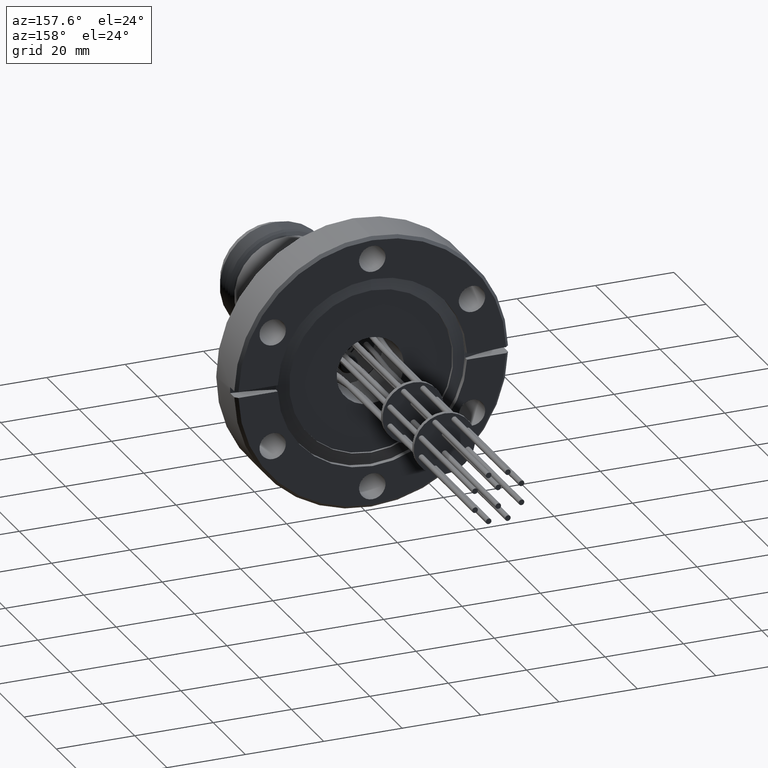
[diagram: clean part render]
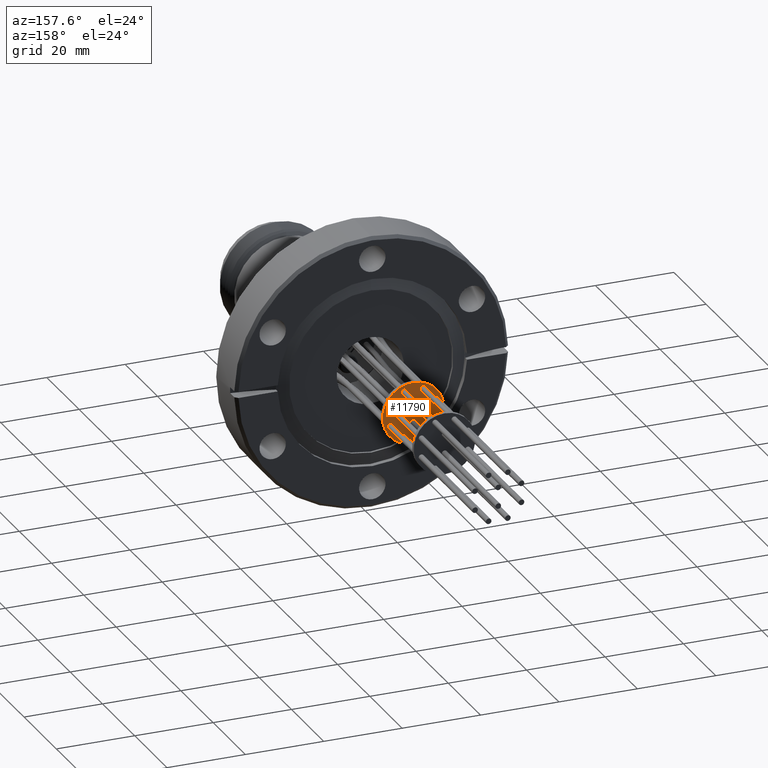
[diagram: same view with one face highlighted and labeled with its STEP entity id]
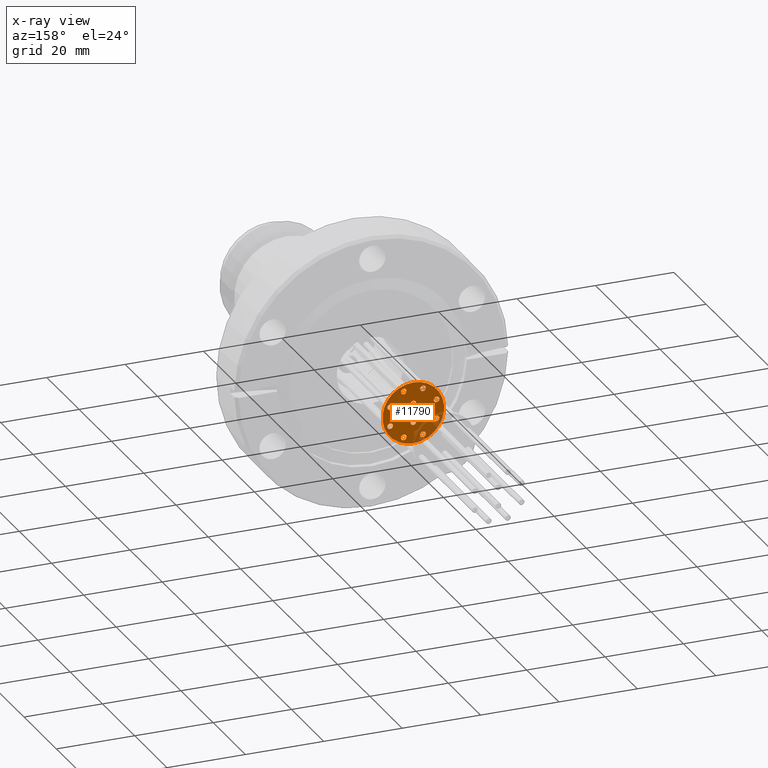
[diagram: x-ray of the same camera — body ghosted, the highlighted face saturated]
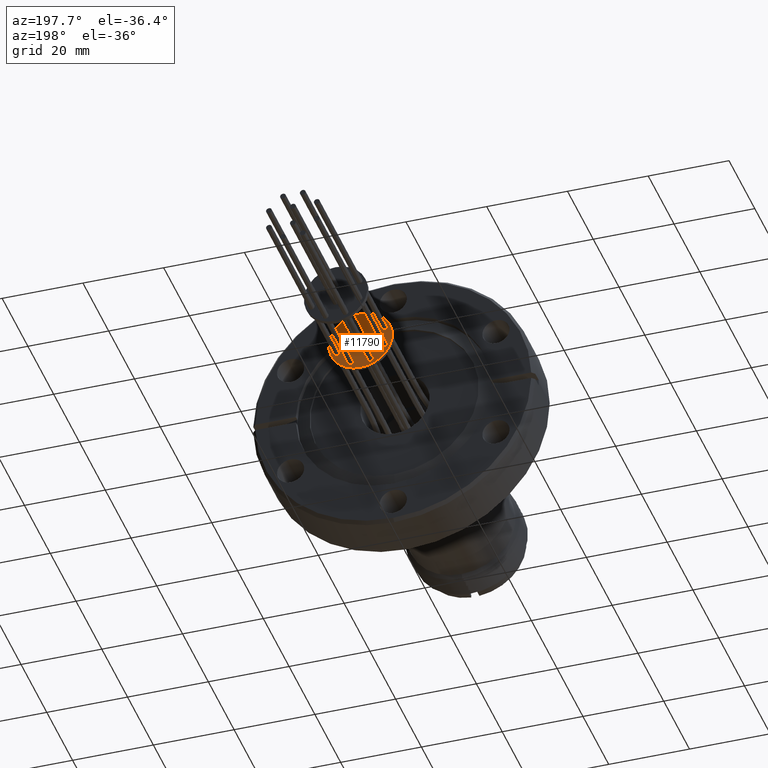
[diagram: same view with one face highlighted and labeled with its STEP entity id]
A machine part, auxiliary view. The second image highlights one B-rep face of the part: STEP entity #11790.
The next image is the same camera in x-ray: the body ghosted, the highlighted face saturated — about 15% of this face is hidden behind the body in this view.
A second angle (auxiliary view) of the same face is appended — the face is thin or edge-on in the first view.
In plain terms, the highlighted planar face has unit normal (0, -1, 0).
Its self-contained STEP definition (entity closure, byte-faithful):
#1167 = CIRCLE ( 'NONE', #2283, 0.02799999999999998000 ) ;
#1504 = VERTEX_POINT ( 'NONE', #12950 ) ;
#1507 = VERTEX_POINT ( 'NONE', #12947 ) ;
#1528 = VERTEX_POINT ( 'NONE', #12925 ) ;
#1554 = VERTEX_POINT ( 'NONE', #12888 ) ;
#1655 = VERTEX_POINT ( 'NONE', #12778 ) ;
#1659 = VERTEX_POINT ( 'NONE', #12774 ) ;
#1675 = VERTEX_POINT ( 'NONE', #12751 ) ;
#1687 = VERTEX_POINT ( 'NONE', #12729 ) ;
#1701 = VERTEX_POINT ( 'NONE', #12713 ) ;
#1726 = VERTEX_POINT ( 'NONE', #12677 ) ;
#1738 = VERTEX_POINT ( 'NONE', #12662 ) ;
#1741 = VERTEX_POINT ( 'NONE', #12658 ) ;
#1756 = VERTEX_POINT ( 'NONE', #12635 ) ;
#1767 = VERTEX_POINT ( 'NONE', #2898 ) ;
#1785 = VERTEX_POINT ( 'NONE', #2861 ) ;
#2283 = AXIS2_PLACEMENT_3D ( 'NONE', #11885, #11884, #11883 ) ;
#2861 = CARTESIAN_POINT ( 'NONE',  ( -0.09499800511692571600, 2.750327907706640000, 0.0001156490920415340400 ) ) ;
#2898 = CARTESIAN_POINT ( 'NONE',  ( 1.460921756939938000E-016, 2.750327907706640000, -0.3099999999999998900 ) ) ;
#3153 = CARTESIAN_POINT ( 'NONE',  ( -0.09662756667218540300, 2.750327907706640000, 0.2612795819591000000 ) ) ;
#3188 = CARTESIAN_POINT ( 'NONE',  ( -0.2052795819591003400, 2.750327907706640000, 0.09662756667218468100 ) ) ;
#3203 = CARTESIAN_POINT ( 'NONE',  ( 0.2612795819591009500, 2.750327907706640000, -0.09662756667218304300 ) ) ;
#3207 = CARTESIAN_POINT ( 'NONE',  ( -1.817840186596829000E-016, 2.750327907706640000, -0.06700000000000030900 ) ) ;
#3238 = CARTESIAN_POINT ( 'NONE',  ( 1.081281249204258500E-016, 2.750327907706640000, 6.995462875240607500E-017 ) ) ;
#3240 = PLANE ( 'NONE',  #11215 ) ;
#3241 = DIRECTION ( 'NONE',  ( 1.848892746611746400E-032, -1.000000000000000000, 1.224646799147353900E-016 ) ) ;
#3242 = DIRECTION ( 'NONE',  ( 0.0000000000000000000, -1.224646799147353900E-016, -1.000000000000000000 ) ) ;
#3783 = CARTESIAN_POINT ( 'NONE',  ( 8.451654730398803400E-016, 2.750327907706640000, 0.09500000000000030600 ) ) ;
#3784 = DIRECTION ( 'NONE',  ( -4.300612986056274500E-031, 1.000000000000000000, -3.213641021232671000E-017 ) ) ;
#3785 = DIRECTION ( 'NONE',  ( 0.0000000000000000000, 0.0000000000000000000, 1.000000000000000000 ) ) ;
#3786 = CARTESIAN_POINT ( 'NONE',  ( -1.817840186596829000E-016, 2.750327907706640000, -0.09500000000000030600 ) ) ;
#3787 = DIRECTION ( 'NONE',  ( 2.056539454981342400E-031, 1.000000000000000000, 3.213641021232671000E-017 ) ) ;
#3788 = DIRECTION ( 'NONE',  ( 0.0000000000000000000, 0.0000000000000000000, 1.000000000000000000 ) ) ;
#3789 = CARTESIAN_POINT ( 'NONE',  ( -0.09662756667218386200, 2.750327907706640000, -0.2332795819591006500 ) ) ;
#3790 = DIRECTION ( 'NONE',  ( 3.014197995417973200E-017, 1.000000000000000000, 7.276917680215769100E-017 ) ) ;
#3791 = DIRECTION ( 'NONE',  ( 0.0000000000000000000, 0.0000000000000000000, 1.000000000000000000 ) ) ;
#3792 = CARTESIAN_POINT ( 'NONE',  ( -0.2332795819590996700, 2.750327907706640000, -0.09662756667218620800 ) ) ;
#3793 = DIRECTION ( 'NONE',  ( 7.276917680215802400E-017, 1.000000000000000000, 3.014197995417890600E-017 ) ) ;
#3794 = DIRECTION ( 'NONE',  ( -1.000000000000000000, 0.0000000000000000000, 0.0000000000000000000 ) ) ;
#3795 = CARTESIAN_POINT ( 'NONE',  ( -0.2332795819591003100, 2.750327907706640000, 0.09662756667218468100 ) ) ;
#3796 = DIRECTION ( 'NONE',  ( 7.276917680215758000E-017, 1.000000000000000000, -3.014197995417998400E-017 ) ) ;
#3797 = DIRECTION ( 'NONE',  ( -1.000000000000000000, 0.0000000000000000000, 0.0000000000000000000 ) ) ;
#3798 = CARTESIAN_POINT ( 'NONE',  ( -0.09662756667218540300, 2.750327907706640000, 0.2332795819591000100 ) ) ;
#3799 = DIRECTION ( 'NONE',  ( 3.014197995417865300E-017, 1.000000000000000000, -7.276917680215813500E-017 ) ) ;
#3800 = DIRECTION ( 'NONE',  ( 0.0000000000000000000, 0.0000000000000000000, 1.000000000000000000 ) ) ;
#3801 = CARTESIAN_POINT ( 'NONE',  ( 0.09662756667218550000, 2.750327907706640000, 0.2332795819590999800 ) ) ;
#3802 = DIRECTION ( 'NONE',  ( -3.014197995418023700E-017, 1.000000000000000000, -7.276917680215748100E-017 ) ) ;
#3803 = DIRECTION ( 'NONE',  ( 0.0000000000000000000, 0.0000000000000000000, 1.000000000000000000 ) ) ;
#3804 = CARTESIAN_POINT ( 'NONE',  ( 0.2332795819590989800, 2.750327907706640000, 0.09662756667218780300 ) ) ;
#3805 = DIRECTION ( 'NONE',  ( -7.276917680215780200E-017, 1.000000000000000000, -3.014197995417940500E-017 ) ) ;
#3806 = DIRECTION ( 'NONE',  ( -1.000000000000000000, 0.0000000000000000000, 0.0000000000000000000 ) ) ;
#3807 = CARTESIAN_POINT ( 'NONE',  ( 0.2332795819591010100, 2.750327907706640000, -0.09662756667218305700 ) ) ;
#3808 = DIRECTION ( 'NONE',  ( -7.276917680215778900E-017, 1.000000000000000000, 3.014197995417947900E-017 ) ) ;
#3809 = DIRECTION ( 'NONE',  ( -1.000000000000000000, 0.0000000000000000000, 0.0000000000000000000 ) ) ;
#3810 = CARTESIAN_POINT ( 'NONE',  ( 0.09662756667218699900, 2.750327907706640000, -0.2332795819590993100 ) ) ;
#3811 = DIRECTION ( 'NONE',  ( -3.014197995417915800E-017, 1.000000000000000000, 7.276917680215791300E-017 ) ) ;
#3812 = DIRECTION ( 'NONE',  ( 0.0000000000000000000, 0.0000000000000000000, 1.000000000000000000 ) ) ;
#3813 = CARTESIAN_POINT ( 'NONE',  ( 1.081281249204258500E-016, 2.750327907706640000, 6.995462875240606300E-017 ) ) ;
#3814 = DIRECTION ( 'NONE',  ( 9.860761315262647600E-032, -1.000000000000000000, 1.224646799147353500E-016 ) ) ;
#3815 = DIRECTION ( 'NONE',  ( 0.0000000000000000000, 0.0000000000000000000, 1.000000000000000000 ) ) ;
#3816 = CARTESIAN_POINT ( 'NONE',  ( -0.09499800511692571600, 2.750327907706640000, 0.0006156490920415386800 ) ) ;
#3817 = DIRECTION ( 'NONE',  ( 9.860761315262647600E-032, -1.000000000000000000, 1.224646799147353500E-016 ) ) ;
#3818 = DIRECTION ( 'NONE',  ( 0.0000000000000000000, 0.0000000000000000000, -1.000000000000000000 ) ) ;
#3819 = CARTESIAN_POINT ( 'NONE',  ( 0.09499800511692595200, 2.750327907706640000, -0.0006156490920420818700 ) ) ;
#3820 = DIRECTION ( 'NONE',  ( 9.860761315262647600E-032, -1.000000000000000000, 1.224646799147353500E-016 ) ) ;
#3821 = DIRECTION ( 'NONE',  ( 0.0000000000000000000, 0.0000000000000000000, -1.000000000000000000 ) ) ;
#4310 = CARTESIAN_POINT ( 'NONE',  ( -1.783550076220702500E-016, 2.750327907706640000, -0.1230000000000003000 ) ) ;
#4357 = CARTESIAN_POINT ( 'NONE',  ( -0.09662756667218386200, 2.750327907706640000, -0.2612795819591006200 ) ) ;
#4376 = CARTESIAN_POINT ( 'NONE',  ( -0.09662756667218540300, 2.750327907706640000, 0.2052795819591000400 ) ) ;
#4377 = CARTESIAN_POINT ( 'NONE',  ( -0.2612795819591002800, 2.750327907706640000, 0.09662756667218468100 ) ) ;
#4388 = CARTESIAN_POINT ( 'NONE',  ( -0.09499800511692571600, 2.750327907706640000, 0.001115649092041543500 ) ) ;
#4415 = CARTESIAN_POINT ( 'NONE',  ( -0.2612795819590996700, 2.750327907706640000, -0.09662756667218620800 ) ) ;
#4446 = CARTESIAN_POINT ( 'NONE',  ( 0.09662756667218550000, 2.750327907706640000, 0.2612795819590999500 ) ) ;
#4991 = EDGE_CURVE ( 'NONE', #9659, #1738, #1167, .T. ) ;
#5183 = FACE_BOUND ( 'NONE', #6156, .T. ) ;
#5189 = FACE_BOUND ( 'NONE', #6207, .T. ) ;
#5197 = FACE_BOUND ( 'NONE', #11717, .T. ) ;
#5201 = FACE_BOUND ( 'NONE', #11718, .T. ) ;
#5203 = FACE_BOUND ( 'NONE', #6219, .T. ) ;
#5204 = FACE_BOUND ( 'NONE', #6194, .T. ) ;
#5205 = FACE_OUTER_BOUND ( 'NONE', #6153, .T. ) ;
#5206 = FACE_BOUND ( 'NONE', #6151, .T. ) ;
#5207 = FACE_BOUND ( 'NONE', #6179, .T. ) ;
#5208 = FACE_BOUND ( 'NONE', #6177, .T. ) ;
#5209 = FACE_BOUND ( 'NONE', #11719, .T. ) ;
#5210 = FACE_BOUND ( 'NONE', #11720, .T. ) ;
#5211 = FACE_BOUND ( 'NONE', #11721, .T. ) ;
#5326 = CIRCLE ( 'NONE', #11285, 0.02799999999999999700 ) ;
#5327 = CIRCLE ( 'NONE', #11286, 0.02799999999999999700 ) ;
#5328 = CIRCLE ( 'NONE', #11287, 0.02799999999999998000 ) ;
#5329 = CIRCLE ( 'NONE', #11288, 0.02799999999999998000 ) ;
#5330 = CIRCLE ( 'NONE', #11289, 0.02799999999999998000 ) ;
#5331 = CIRCLE ( 'NONE', #11290, 0.02799999999999998000 ) ;
#5332 = CIRCLE ( 'NONE', #11291, 0.02799999999999998000 ) ;
#5333 = CIRCLE ( 'NONE', #11292, 0.02799999999999998000 ) ;
#5334 = CIRCLE ( 'NONE', #11293, 0.02799999999999994900 ) ;
#5335 = CIRCLE ( 'NONE', #11294, 0.02799999999999998000 ) ;
#5336 = CIRCLE ( 'NONE', #11295, 0.3100000000000000000 ) ;
#5337 = CIRCLE ( 'NONE', #11296, 0.0005000000000000046700 ) ;
#5338 = CIRCLE ( 'NONE', #11297, 0.0005000000000000046700 ) ;
#6151 = EDGE_LOOP ( 'NONE', ( #12288, #12289 ) ) ;
#6153 = EDGE_LOOP ( 'NONE', ( #12274, #12275 ) ) ;
#6156 = EDGE_LOOP ( 'NONE', ( #12282, #12283 ) ) ;
#6177 = EDGE_LOOP ( 'NONE', ( #12284, #12285 ) ) ;
#6179 = EDGE_LOOP ( 'NONE', ( #12286, #12287 ) ) ;
#6194 = EDGE_LOOP ( 'NONE', ( #12278, #12279 ) ) ;
#6207 = EDGE_LOOP ( 'NONE', ( #12276, #12277 ) ) ;
#6219 = EDGE_LOOP ( 'NONE', ( #12280, #12281 ) ) ;
#8462 = CARTESIAN_POINT ( 'NONE',  ( -0.09662756667218386200, 2.750327907706640000, -0.2332795819591006500 ) ) ;
#8463 = DIRECTION ( 'NONE',  ( 3.014197995417973200E-017, 1.000000000000000000, 7.276917680215769100E-017 ) ) ;
#8464 = DIRECTION ( 'NONE',  ( 0.0000000000000000000, 0.0000000000000000000, 1.000000000000000000 ) ) ;
#8472 = CARTESIAN_POINT ( 'NONE',  ( -1.817840186596829000E-016, 2.750327907706640000, -0.09500000000000030600 ) ) ;
#8473 = DIRECTION ( 'NONE',  ( 2.056539454981342400E-031, 1.000000000000000000, 3.213641021232671000E-017 ) ) ;
#8474 = DIRECTION ( 'NONE',  ( 0.0000000000000000000, 0.0000000000000000000, 1.000000000000000000 ) ) ;
#8482 = CARTESIAN_POINT ( 'NONE',  ( 8.451654730398803400E-016, 2.750327907706640000, 0.09500000000000030600 ) ) ;
#8483 = DIRECTION ( 'NONE',  ( -4.300612986056274500E-031, 1.000000000000000000, -3.213641021232671000E-017 ) ) ;
#8484 = DIRECTION ( 'NONE',  ( 0.0000000000000000000, 0.0000000000000000000, 1.000000000000000000 ) ) ;
#9069 = CARTESIAN_POINT ( 'NONE',  ( 1.081281249204258500E-016, 2.750327907706640000, 6.995462875240606300E-017 ) ) ;
#9070 = DIRECTION ( 'NONE',  ( 9.860761315262647600E-032, -1.000000000000000000, 1.224646799147353500E-016 ) ) ;
#9072 = DIRECTION ( 'NONE',  ( 0.0000000000000000000, 0.0000000000000000000, 1.000000000000000000 ) ) ;
#9089 = CARTESIAN_POINT ( 'NONE',  ( -0.09499800511692571600, 2.750327907706640000, 0.0006156490920415386800 ) ) ;
#9090 = DIRECTION ( 'NONE',  ( 9.860761315262647600E-032, -1.000000000000000000, 1.224646799147353500E-016 ) ) ;
#9091 = DIRECTION ( 'NONE',  ( 0.0000000000000000000, 0.0000000000000000000, -1.000000000000000000 ) ) ;
#9124 = CARTESIAN_POINT ( 'NONE',  ( 0.09499800511692595200, 2.750327907706640000, -0.0006156490920420818700 ) ) ;
#9126 = DIRECTION ( 'NONE',  ( 9.860761315262647600E-032, -1.000000000000000000, 1.224646799147353500E-016 ) ) ;
#9128 = DIRECTION ( 'NONE',  ( 0.0000000000000000000, 0.0000000000000000000, -1.000000000000000000 ) ) ;
#9160 = CARTESIAN_POINT ( 'NONE',  ( 0.09662756667218699900, 2.750327907706640000, -0.2332795819590993100 ) ) ;
#9161 = DIRECTION ( 'NONE',  ( -3.014197995417915800E-017, 1.000000000000000000, 7.276917680215791300E-017 ) ) ;
#9163 = DIRECTION ( 'NONE',  ( 0.0000000000000000000, 0.0000000000000000000, 1.000000000000000000 ) ) ;
#9201 = CARTESIAN_POINT ( 'NONE',  ( 0.2332795819591010100, 2.750327907706640000, -0.09662756667218305700 ) ) ;
#9202 = DIRECTION ( 'NONE',  ( -7.276917680215778900E-017, 1.000000000000000000, 3.014197995417947900E-017 ) ) ;
#9204 = DIRECTION ( 'NONE',  ( -1.000000000000000000, 0.0000000000000000000, 0.0000000000000000000 ) ) ;
#9240 = CARTESIAN_POINT ( 'NONE',  ( 0.2332795819590989800, 2.750327907706640000, 0.09662756667218780300 ) ) ;
#9241 = DIRECTION ( 'NONE',  ( -7.276917680215780200E-017, 1.000000000000000000, -3.014197995417940500E-017 ) ) ;
#9242 = DIRECTION ( 'NONE',  ( -1.000000000000000000, 0.0000000000000000000, 0.0000000000000000000 ) ) ;
#9283 = CARTESIAN_POINT ( 'NONE',  ( 0.09662756667218550000, 2.750327907706640000, 0.2332795819590999800 ) ) ;
#9284 = DIRECTION ( 'NONE',  ( -3.014197995418023700E-017, 1.000000000000000000, -7.276917680215748100E-017 ) ) ;
#9286 = DIRECTION ( 'NONE',  ( 0.0000000000000000000, 0.0000000000000000000, 1.000000000000000000 ) ) ;
#9323 = CARTESIAN_POINT ( 'NONE',  ( -0.09662756667218540300, 2.750327907706640000, 0.2332795819591000100 ) ) ;
#9325 = DIRECTION ( 'NONE',  ( 3.014197995417865300E-017, 1.000000000000000000, -7.276917680215813500E-017 ) ) ;
#9327 = DIRECTION ( 'NONE',  ( 0.0000000000000000000, 0.0000000000000000000, 1.000000000000000000 ) ) ;
#9363 = CARTESIAN_POINT ( 'NONE',  ( -0.2332795819591003100, 2.750327907706640000, 0.09662756667218468100 ) ) ;
#9364 = DIRECTION ( 'NONE',  ( 7.276917680215758000E-017, 1.000000000000000000, -3.014197995417998400E-017 ) ) ;
#9366 = DIRECTION ( 'NONE',  ( -1.000000000000000000, 0.0000000000000000000, 0.0000000000000000000 ) ) ;
#9463 = AXIS2_PLACEMENT_3D ( 'NONE', #8462, #8463, #8464 ) ;
#9465 = AXIS2_PLACEMENT_3D ( 'NONE', #8472, #8473, #8474 ) ;
#9467 = AXIS2_PLACEMENT_3D ( 'NONE', #8482, #8483, #8484 ) ;
#9560 = VERTEX_POINT ( 'NONE', #4310 ) ;
#9601 = VERTEX_POINT ( 'NONE', #4357 ) ;
#9620 = VERTEX_POINT ( 'NONE', #4376 ) ;
#9621 = VERTEX_POINT ( 'NONE', #4377 ) ;
#9632 = VERTEX_POINT ( 'NONE', #4388 ) ;
#9659 = VERTEX_POINT ( 'NONE', #4415 ) ;
#9690 = VERTEX_POINT ( 'NONE', #4446 ) ;
#9874 = EDGE_CURVE ( 'NONE', #1741, #9601, #10473, .T. ) ;
#9878 = EDGE_CURVE ( 'NONE', #11594, #9560, #10474, .T. ) ;
#9882 = EDGE_CURVE ( 'NONE', #1507, #1504, #10480, .T. ) ;
#10080 = EDGE_CURVE ( 'NONE', #1767, #1687, #10755, .T. ) ;
#10084 = EDGE_CURVE ( 'NONE', #9632, #1785, #10763, .T. ) ;
#10092 = EDGE_CURVE ( 'NONE', #1528, #1701, #10775, .T. ) ;
#10100 = EDGE_CURVE ( 'NONE', #1675, #1756, #10788, .T. ) ;
#10108 = EDGE_CURVE ( 'NONE', #1726, #11590, #10799, .T. ) ;
#10116 = EDGE_CURVE ( 'NONE', #1655, #1554, #10811, .T. ) ;
#10124 = EDGE_CURVE ( 'NONE', #9690, #1659, #10823, .T. ) ;
#10132 = EDGE_CURVE ( 'NONE', #11540, #9620, #10825, .T. ) ;
#10140 = EDGE_CURVE ( 'NONE', #9621, #11575, #10848, .T. ) ;
#10473 = CIRCLE ( 'NONE', #9463, 0.02799999999999998000 ) ;
#10474 = CIRCLE ( 'NONE', #9465, 0.02799999999999999700 ) ;
#10480 = CIRCLE ( 'NONE', #9467, 0.02799999999999999700 ) ;
#10755 = CIRCLE ( 'NONE', #11036, 0.3100000000000000000 ) ;
#10763 = CIRCLE ( 'NONE', #11038, 0.0005000000000000046700 ) ;
#10775 = CIRCLE ( 'NONE', #11043, 0.0005000000000000046700 ) ;
#10788 = CIRCLE ( 'NONE', #11046, 0.02799999999999998000 ) ;
#10799 = CIRCLE ( 'NONE', #11050, 0.02799999999999994900 ) ;
#10811 = CIRCLE ( 'NONE', #11054, 0.02799999999999998000 ) ;
#10823 = CIRCLE ( 'NONE', #11058, 0.02799999999999998000 ) ;
#10825 = CIRCLE ( 'NONE', #11061, 0.02799999999999998000 ) ;
#10848 = CIRCLE ( 'NONE', #11066, 0.02799999999999998000 ) ;
#11036 = AXIS2_PLACEMENT_3D ( 'NONE', #9069, #9070, #9072 ) ;
#11038 = AXIS2_PLACEMENT_3D ( 'NONE', #9089, #9090, #9091 ) ;
#11043 = AXIS2_PLACEMENT_3D ( 'NONE', #9124, #9126, #9128 ) ;
#11046 = AXIS2_PLACEMENT_3D ( 'NONE', #9160, #9161, #9163 ) ;
#11050 = AXIS2_PLACEMENT_3D ( 'NONE', #9201, #9202, #9204 ) ;
#11054 = AXIS2_PLACEMENT_3D ( 'NONE', #9240, #9241, #9242 ) ;
#11058 = AXIS2_PLACEMENT_3D ( 'NONE', #9283, #9284, #9286 ) ;
#11061 = AXIS2_PLACEMENT_3D ( 'NONE', #9323, #9325, #9327 ) ;
#11066 = AXIS2_PLACEMENT_3D ( 'NONE', #9363, #9364, #9366 ) ;
#11215 = AXIS2_PLACEMENT_3D ( 'NONE', #3238, #3241, #3242 ) ;
#11285 = AXIS2_PLACEMENT_3D ( 'NONE', #3783, #3784, #3785 ) ;
#11286 = AXIS2_PLACEMENT_3D ( 'NONE', #3786, #3787, #3788 ) ;
#11287 = AXIS2_PLACEMENT_3D ( 'NONE', #3789, #3790, #3791 ) ;
#11288 = AXIS2_PLACEMENT_3D ( 'NONE', #3792, #3793, #3794 ) ;
#11289 = AXIS2_PLACEMENT_3D ( 'NONE', #3795, #3796, #3797 ) ;
#11290 = AXIS2_PLACEMENT_3D ( 'NONE', #3798, #3799, #3800 ) ;
#11291 = AXIS2_PLACEMENT_3D ( 'NONE', #3801, #3802, #3803 ) ;
#11292 = AXIS2_PLACEMENT_3D ( 'NONE', #3804, #3805, #3806 ) ;
#11293 = AXIS2_PLACEMENT_3D ( 'NONE', #3807, #3808, #3809 ) ;
#11294 = AXIS2_PLACEMENT_3D ( 'NONE', #3810, #3811, #3812 ) ;
#11295 = AXIS2_PLACEMENT_3D ( 'NONE', #3813, #3814, #3815 ) ;
#11296 = AXIS2_PLACEMENT_3D ( 'NONE', #3816, #3817, #3818 ) ;
#11297 = AXIS2_PLACEMENT_3D ( 'NONE', #3819, #3820, #3821 ) ;
#11540 = VERTEX_POINT ( 'NONE', #3153 ) ;
#11575 = VERTEX_POINT ( 'NONE', #3188 ) ;
#11590 = VERTEX_POINT ( 'NONE', #3203 ) ;
#11594 = VERTEX_POINT ( 'NONE', #3207 ) ;
#11717 = EDGE_LOOP ( 'NONE', ( #12290, #12291 ) ) ;
#11718 = EDGE_LOOP ( 'NONE', ( #12292, #12293 ) ) ;
#11719 = EDGE_LOOP ( 'NONE', ( #12294, #12295 ) ) ;
#11720 = EDGE_LOOP ( 'NONE', ( #12296, #12297 ) ) ;
#11721 = EDGE_LOOP ( 'NONE', ( #12298, #12299 ) ) ;
#11790 = ADVANCED_FACE ( 'NONE', ( #5205, #5189, #5204, #5203, #5183, #5208, #5207, #5206, #5197, #5201, #5209, #5210, #5211 ), #3240, .F. ) ;
#11883 = DIRECTION ( 'NONE',  ( -1.000000000000000000, 0.0000000000000000000, 0.0000000000000000000 ) ) ;
#11884 = DIRECTION ( 'NONE',  ( 7.276917680215802400E-017, 1.000000000000000000, 3.014197995417890600E-017 ) ) ;
#11885 = CARTESIAN_POINT ( 'NONE',  ( -0.2332795819590996700, 2.750327907706640000, -0.09662756667218620800 ) ) ;
#12274 = ORIENTED_EDGE ( 'NONE', *, *, #14312, .F. ) ;
#12275 = ORIENTED_EDGE ( 'NONE', *, *, #10080, .F. ) ;
#12276 = ORIENTED_EDGE ( 'NONE', *, *, #14313, .T. ) ;
#12277 = ORIENTED_EDGE ( 'NONE', *, *, #10084, .T. ) ;
#12278 = ORIENTED_EDGE ( 'NONE', *, *, #14314, .T. ) ;
#12279 = ORIENTED_EDGE ( 'NONE', *, *, #10092, .T. ) ;
#12280 = ORIENTED_EDGE ( 'NONE', *, *, #10100, .F. ) ;
#12281 = ORIENTED_EDGE ( 'NONE', *, *, #14311, .F. ) ;
#12282 = ORIENTED_EDGE ( 'NONE', *, *, #10108, .F. ) ;
#12283 = ORIENTED_EDGE ( 'NONE', *, *, #14310, .F. ) ;
#12284 = ORIENTED_EDGE ( 'NONE', *, *, #10116, .F. ) ;
#12285 = ORIENTED_EDGE ( 'NONE', *, *, #14309, .F. ) ;
#12286 = ORIENTED_EDGE ( 'NONE', *, *, #10124, .F. ) ;
#12287 = ORIENTED_EDGE ( 'NONE', *, *, #14308, .F. ) ;
#12288 = ORIENTED_EDGE ( 'NONE', *, *, #10132, .F. ) ;
#12289 = ORIENTED_EDGE ( 'NONE', *, *, #14307, .F. ) ;
#12290 = ORIENTED_EDGE ( 'NONE', *, *, #10140, .F. ) ;
#12291 = ORIENTED_EDGE ( 'NONE', *, *, #14306, .F. ) ;
#12292 = ORIENTED_EDGE ( 'NONE', *, *, #4991, .F. ) ;
#12293 = ORIENTED_EDGE ( 'NONE', *, *, #14305, .F. ) ;
#12294 = ORIENTED_EDGE ( 'NONE', *, *, #9874, .F. ) ;
#12295 = ORIENTED_EDGE ( 'NONE', *, *, #14304, .F. ) ;
#12296 = ORIENTED_EDGE ( 'NONE', *, *, #9878, .F. ) ;
#12297 = ORIENTED_EDGE ( 'NONE', *, *, #14303, .F. ) ;
#12298 = ORIENTED_EDGE ( 'NONE', *, *, #9882, .F. ) ;
#12299 = ORIENTED_EDGE ( 'NONE', *, *, #14302, .F. ) ;
#12635 = CARTESIAN_POINT ( 'NONE',  ( 0.09662756667218699900, 2.750327907706640000, -0.2612795819590992800 ) ) ;
#12658 = CARTESIAN_POINT ( 'NONE',  ( -0.09662756667218386200, 2.750327907706640000, -0.2052795819591006800 ) ) ;
#12662 = CARTESIAN_POINT ( 'NONE',  ( -0.2052795819590996800, 2.750327907706640000, -0.09662756667218618000 ) ) ;
#12677 = CARTESIAN_POINT ( 'NONE',  ( 0.2052795819591010700, 2.750327907706640000, -0.09662756667218305700 ) ) ;
#12713 = CARTESIAN_POINT ( 'NONE',  ( 0.09499800511692595200, 2.750327907706640000, -0.001115649092042086400 ) ) ;
#12729 = CARTESIAN_POINT ( 'NONE',  ( 1.081281249204258500E-016, 2.750327907706640000, 0.3100000000000000500 ) ) ;
#12751 = CARTESIAN_POINT ( 'NONE',  ( 0.09662756667218699900, 2.750327907706640000, -0.2052795819590993400 ) ) ;
#12774 = CARTESIAN_POINT ( 'NONE',  ( 0.09662756667218550000, 2.750327907706640000, 0.2052795819590999800 ) ) ;
#12778 = CARTESIAN_POINT ( 'NONE',  ( 0.2052795819590990100, 2.750327907706640000, 0.09662756667218780300 ) ) ;
#12888 = CARTESIAN_POINT ( 'NONE',  ( 0.2612795819590989500, 2.750327907706640000, 0.09662756667218779000 ) ) ;
#12925 = CARTESIAN_POINT ( 'NONE',  ( 0.09499800511692595200, 2.750327907706640000, -0.0001156490920420772000 ) ) ;
#12947 = CARTESIAN_POINT ( 'NONE',  ( 8.451654730398803400E-016, 2.750327907706640000, 0.1230000000000003000 ) ) ;
#12950 = CARTESIAN_POINT ( 'NONE',  ( 8.485944840774927800E-016, 2.750327907706640000, 0.06700000000000030900 ) ) ;
#14302 = EDGE_CURVE ( 'NONE', #1504, #1507, #5326, .T. ) ;
#14303 = EDGE_CURVE ( 'NONE', #9560, #11594, #5327, .T. ) ;
#14304 = EDGE_CURVE ( 'NONE', #9601, #1741, #5328, .T. ) ;
#14305 = EDGE_CURVE ( 'NONE', #1738, #9659, #5329, .T. ) ;
#14306 = EDGE_CURVE ( 'NONE', #11575, #9621, #5330, .T. ) ;
#14307 = EDGE_CURVE ( 'NONE', #9620, #11540, #5331, .T. ) ;
#14308 = EDGE_CURVE ( 'NONE', #1659, #9690, #5332, .T. ) ;
#14309 = EDGE_CURVE ( 'NONE', #1554, #1655, #5333, .T. ) ;
#14310 = EDGE_CURVE ( 'NONE', #11590, #1726, #5334, .T. ) ;
#14311 = EDGE_CURVE ( 'NONE', #1756, #1675, #5335, .T. ) ;
#14312 = EDGE_CURVE ( 'NONE', #1687, #1767, #5336, .T. ) ;
#14313 = EDGE_CURVE ( 'NONE', #1785, #9632, #5337, .T. ) ;
#14314 = EDGE_CURVE ( 'NONE', #1701, #1528, #5338, .T. ) ;